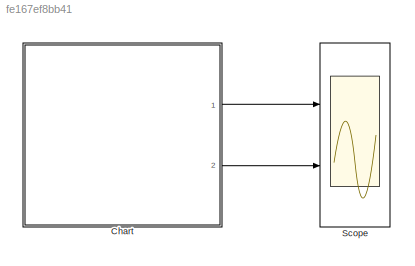
MODEL slx_fe167ef8bb41
KIND model
CONFIG AbsTol = auto
CONFIG EnableMultiTasking = on
CONFIG FixedStep = auto
CONFIG MaxStep = auto
CONFIG MinStep = auto
CONFIG RelTol = 1e-3
CONFIG SampleTimeConstraint = Unconstrained
CONFIG Solver = FixedStepDiscrete
CONFIG SolverName = FixedStepDiscrete
CONFIG StartTime = 0.0
CONFIG StopTime = 10.0
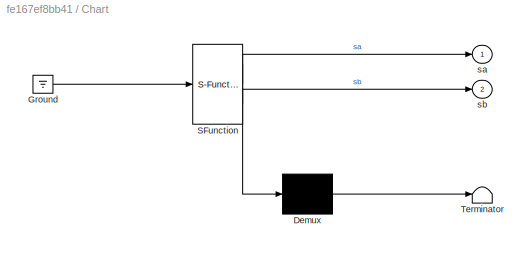
BLOCK [SubSystem] Chart
  ErrorFcn = Stateflow.Translate.translate
  PermitHierarchicalResolution = ExplicitOnly
  Ports = [0, 2]
  RequestExecContextInheritance = off
  SFBlockType = Chart
  TreatAsAtomicUnit = on
  Variant = off
BLOCK [Demux] Chart/ Demux 
  Outputs = 1
  Ports = [1, 1]
BLOCK [Ground] Chart/ Ground 
BLOCK [S-Function] Chart/ SFunction 
  EnableBusSupport = on
  FunctionName = sf_sfun
  PortCounts = [1 3]
  Ports = [1, 3]
  SFcnIsStateOwnerBlock = off
  SFunctionDeploymentMode = off
  Tag = Stateflow S-Function duel_44_my 1
BLOCK [Terminator] Chart/ Terminator 
BLOCK [Outport] Chart/sa
  IconDisplay = Port number
BLOCK [Outport] Chart/sb
  IconDisplay = Port number
  Port = 2
BLOCK [Scope] Scope
  NumInputPorts = 2
  Ports = [2]
  ScopeSpecificationString = Simulink.scopes.TimeScopeBlockCfg('CurrentConfiguration', extmgr.ConfigurationSet(extmgr.Configuration('Core','General UI',true),extmgr.Configuration('Core','Source UI',true),extmgr.Configuration('Sources','WiredSimulink',true,'DataLoggingSaveFormat','StructureWithTime','DataLoggingMaxPoints','100','SampleTime','Ts','DataLoggingLimitDataPoints',true,'DataLoggingDecimation','1','DataLoggingDecimate...<+2341ch>
LINE Chart:1 -> Scope:1
LINE Chart:2 -> Scope:2
CHART Chart states=65 transitions=73
  STATE_LABEL 'B4'
  STATE_LABEL 'life_B/'
  STATE_LABEL 'victory_B/\nentry: send(attack_b);'
  STATE_LABEL "B_1/\nentry: bt1=t+ml('pro(LB1)');"
  STATE_LABEL "B_2/\nentry: bt2=t+ml('pro(LB2)');\nk=ml('res(na0)'); ml.na0[k]=2;"
  STATE_LABEL "B_3/\nentry: bt3=t+ml('pro(LB3)');\nduring: p2=ml('rand');"
  STATE_LABEL "[ml('sum(na0)')>0]"
  STATE_LABEL '[p2<ml.pb]/ml.na0[k]=0;'
  STATE_LABEL '[t>bt1]'
  STATE_LABEL '[t>bt3]'
  STATE_LABEL '[p2>=ml.pb]/bt3=t+1;'
  STATE_LABEL '[t>bt2]'
  STATE_LABEL 'death_B/'
  STATE_LABEL 'attack_a[ml.nb0[4]==0]'
  STATE_LABEL 'life_B/'
  STATE_LABEL 'victory_B/\nentry: send(attack_b);'
  STATE_LABEL "B_1/\nentry: bt1=t+ml('pro(LB1)');"
  STATE_LABEL "B_2/\nentry: bt2=t+ml('pro(LB2)');\nk=ml('res(na0)'); ml.na0[k]=2;"
  STATE_LABEL "B_3/\nentry: bt3=t+ml('pro(LB3)');\nduring: p2=ml('rand');"
  STATE_LABEL "[ml('sum(na0)')>0]"
  STATE_LABEL '[p2<ml.pb]/ml.na0[k]=0;'
  STATE_LABEL '[t>bt1]'
  STATE_LABEL '[t>bt3]'
  STATE_LABEL '[p2>=ml.pb]/bt3=t+1;'
  STATE_LABEL '[t>bt2]'
  STATE_LABEL 'victory_B/\nentry: send(attack_b);'
  STATE_LABEL "B_1/\nentry: bt1=t+ml('pro(LB1)');"
  STATE_LABEL "B_2/\nentry: bt2=t+ml('pro(LB2)');\nk=ml('res(na0)'); ml.na0[k]=2;"
  STATE_LABEL "B_3/\nentry: bt3=t+ml('pro(LB3)');\nduring: p2=ml('rand');"
  STATE_LABEL 'death_B/'
  STATE_LABEL 'A1'
  STATE_LABEL 'life_A/'
  STATE_LABEL "A_1/\nentry: at1=t+ml('pro(LA1)');"
  STATE_LABEL 'victory_A/\nentry: send(attack_a);'
  STATE_LABEL "A_2/\nentry:  at2=t+ml('pro(LA2)');\nk=ml('res(nb0)');ml.nb0[k]=2;"
  STATE_LABEL "A_3/\nentry: at3=t+ml('pro(LA3)');\nduring: p1=ml('rand');"
  STATE_LABEL "[ml('sum(nb0)')>0]"
  STATE_LABEL '[p1<ml.pa]/ml.nb0[k]=0;'
  STATE_LABEL '[t>at1]'
  STATE_LABEL '[t>at2]'
